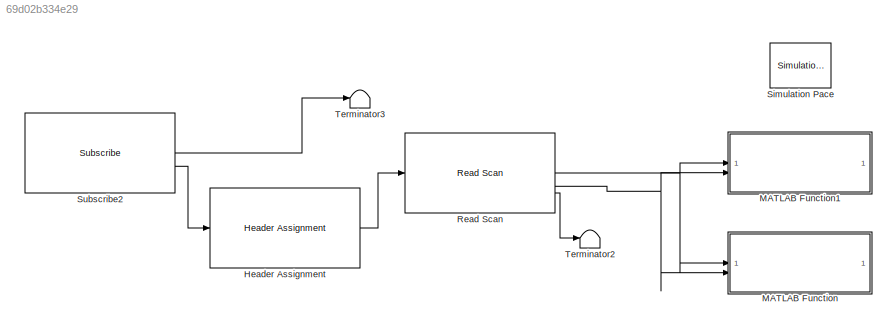
MODEL slx_69d02b334e29
KIND model
CONFIG AbsTol = auto
CONFIG EnableMultiTasking = off
CONFIG FixedStep = auto
CONFIG MaxStep = auto
CONFIG MinStep = auto
CONFIG RelTol = 1e-3
CONFIG SampleTimeConstraint = Unconstrained
CONFIG SolverName = FixedStepAuto
CONFIG StartTime = 0.0
CONFIG StopTime = Inf
WORKSPACE source: mxarray member
WORKSPACE SL_ROS_VariableLengthArrays_MaxSizes: object (value not decoded)
BLOCK [Reference] Header Assignment  REF=robotlib/Header Assignment
  SourceBlock = robotlib/Header Assignment
  SourceType = ROS Header
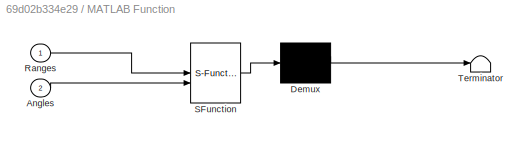
BLOCK [SubSystem] MATLAB Function
  Commented = on
  ErrorFcn = Stateflow.Translate.translate
  LibrarySourceBlock = simulink/User-Defined\nFunctions/MATLAB Function
  PermitHierarchicalResolution = ExplicitOnly
  SFBlockType = MATLAB Function
  TreatAsAtomicUnit = on
BLOCK [Demux] MATLAB Function/ Demux 
  Outputs = 1
BLOCK [S-Function] MATLAB Function/ SFunction 
  EnableBusSupport = on
  FunctionName = sf_sfun
  PortCounts = [2 1]
  SFcnIsStateOwnerBlock = off
  SFunctionDeploymentMode = off
  Tag = Stateflow S-Function 2
BLOCK [Terminator] MATLAB Function/ Terminator 
BLOCK [Inport] MATLAB Function/Angles
  Port = 2
BLOCK [Inport] MATLAB Function/Ranges
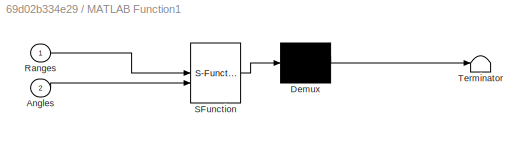
BLOCK [SubSystem] MATLAB Function1
  ErrorFcn = Stateflow.Translate.translate
  LibrarySourceBlock = simulink/User-Defined\nFunctions/MATLAB Function
  PermitHierarchicalResolution = ExplicitOnly
  SFBlockType = MATLAB Function
  TreatAsAtomicUnit = on
BLOCK [Demux] MATLAB Function1/ Demux 
  Outputs = 1
BLOCK [S-Function] MATLAB Function1/ SFunction 
  EnableBusSupport = on
  FunctionName = sf_sfun
  PortCounts = [2 1]
  SFcnIsStateOwnerBlock = off
  SFunctionDeploymentMode = off
  Tag = Stateflow S-Function 1
BLOCK [Terminator] MATLAB Function1/ Terminator 
BLOCK [Inport] MATLAB Function1/Angles
  Port = 2
BLOCK [Inport] MATLAB Function1/Ranges
BLOCK [Reference] Read Scan  REF=robotlib/Read Scan
  SourceBlock = robotlib/Read Scan
  SourceType = ros.slros.internal.block.ReadScan
BLOCK [Reference] Simulation Pace  REF=aerolibanimutils/Simulation Pace
  AttributesFormatString = %<SleepMode>\n%<SimulationPace> sec/sec
  SourceBlock = aerolibanimutils/Simulation Pace
  SourceType = Simulation Pace
BLOCK [Reference] Subscribe2  REF=robotlib/Subscribe
  SourceBlock = robotlib/Subscribe
  SourceType = ROS Subscribe
BLOCK [Terminator] Terminator2
BLOCK [Terminator] Terminator3
LINE Header Assignment:1 -> Read Scan:1
NET Read Scan:1 -> MATLAB Function1:1, MATLAB Function:1
NET Read Scan:2 -> MATLAB Function1:2, MATLAB Function:2
LINE Read Scan:3 -> Terminator2:1
LINE Subscribe2:1 -> Terminator3:1
LINE Subscribe2:2 -> Header Assignment:1
note: NET lines group one-source signal fan-out (src -> all destinations, sorted); 1:1 wires keep LINE
CHART MATLAB Function states=1 transitions=1
  STATE_LABEL 'eML_blk_kernel()'
  STATE_LABEL "SCRIPT:\nfunction plotLaser(Ranges, Angles)\ncoder.extrinsic('polarplot');\npersistent p;\nif isempty(p)\n    p = polarplot(0, 0, '.');\n    set(gca, 'ThetaZeroLocation', 'top', 'ThetaLim', [-135 135], ...\n        'RAxisLocation', 0, 'RLim', [0 10]);\nend\nif ishandle(p)\n    set(p, 'ThetaData', Angles);\n    set(p, 'RData', Ranges);\n    drawnow limitrate;\nend"
CHART MATLAB Function1 states=1 transitions=1
  STATE_LABEL 'eML_blk_kernel()'
  STATE_LABEL "SCRIPT:\nfunction plotLaserCart(Ranges, Angles)\ncoder.extrinsic('plot');\npersistent p;\n\nX = Ranges .* sin(Angles);\nY = Ranges .* -cos(Angles);\n\nif isempty(p)\n    p = plot(0, 0, '.');\n    set(gca,'XLim',[-5 5],'YLim',[-5 5])\nend\nif ishandle(p)\n    set(p, 'XData', X);\n    set(p, 'YData', Y);\n    drawnow limitrate;\nend"
CHART  states=0 transitions=0
CHART  states=0 transitions=0
